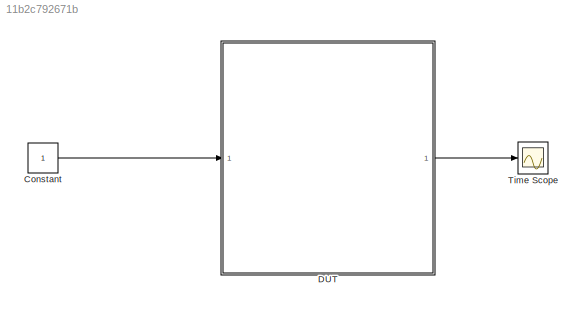
MODEL slx_11b2c792671b
KIND model
CONFIG AbsTol = auto
CONFIG EnableMultiTasking = off
CONFIG FixedStep = 1/128e6
CONFIG InitFcn = %axis_example_init\nnco_setup\nload('iq_bus_obj.mat')
CONFIG MaxStep = auto
CONFIG MinStep = auto
CONFIG RelTol = 1e-3
CONFIG SampleTimeConstraint = Unconstrained
CONFIG Solver = FixedStepDiscrete
CONFIG SolverName = FixedStepDiscrete
CONFIG StartTime = 0.0
CONFIG StopTime = 2e-6
BLOCK [Constant] Constant
  OutDataTypeStr = boolean
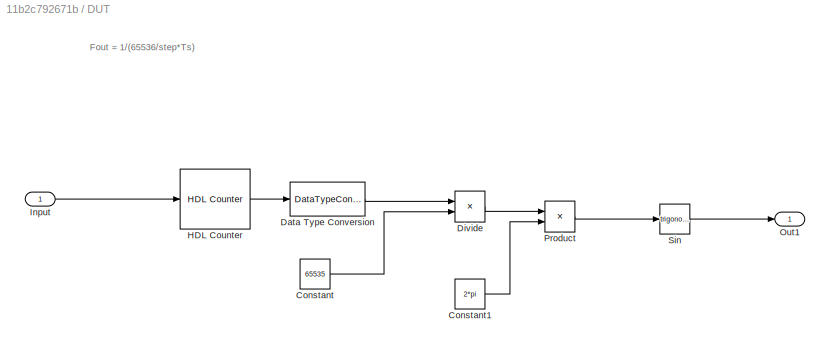
BLOCK [SubSystem] DUT
  Ports = [1, 1]
  RequestExecContextInheritance = off
BLOCK [Constant] DUT/Constant
  SampleTime = -1
  Value = 65535
BLOCK [Constant] DUT/Constant1
  SampleTime = -1
  Value = 2*pi
BLOCK [DataTypeConversion] DUT/Data Type Conversion
  RndMeth = Floor
  SaturateOnIntegerOverflow = off
BLOCK [Product] DUT/Divide
  InputSameDT = off
  Inputs = */
  OutDataTypeStr = Inherit: Inherit via internal rule
  Ports = [2, 1]
  RndMeth = Floor
  SaturateOnIntegerOverflow = off
BLOCK [Reference] DUT/HDL Counter  REF=hdlsllib/Sources/HDL Counter
  Ports = [1, 1]
  SourceBlock = hdlsllib/Sources/HDL Counter
  SourceProductBaseCode = SL
  SourceProductName = Simulink
  SourceType = HDL Counter
BLOCK [Inport] DUT/Input
  IconDisplay = Port number
BLOCK [Outport] DUT/Out1
  IconDisplay = Port number
BLOCK [Product] DUT/Product
  InputSameDT = off
  OutDataTypeStr = Inherit: Inherit via internal rule
  Ports = [2, 1]
  RndMeth = Floor
  SaturateOnIntegerOverflow = off
BLOCK [Trigonometry] DUT/Sin
  Ports = [1, 1]
BLOCK [Scope] Time Scope
  DefaultConfigurationName = spbscopes.TimeScopeBlockCfg
  Floating = off
  NumInputPorts = 1
  Ports = [1]
  ScopeSpecificationString = spbscopes.TimeScopeBlockCfg('CurrentConfiguration', extmgr.ConfigurationSet(extmgr.Configuration('Core','General UI',true,'FigureColor',[0.156862745098039 0.156862745098039 0.156862745098039]),extmgr.Configuration('Core','Source UI',true),extmgr.Configuration('Sources','WiredSimulink',true),extmgr.Configuration('Visuals','Time Domain',true,'DisplayPropertyDefaults',struct('MinYLimReal','-1.25','Ma...<+1764ch>
  UserDataPersistent = on
ANNOTATION DUT: Fout = 1/(65536/step*Ts)
LINE Constant:1 -> DUT:1
LINE DUT/Constant1:1 -> DUT/Product:2
LINE DUT/Constant:1 -> DUT/Divide:2
LINE DUT/Data Type Conversion:1 -> DUT/Divide:1
LINE DUT/Divide:1 -> DUT/Product:1
LINE DUT/HDL Counter:1 -> DUT/Data Type Conversion:1
LINE DUT/Input:1 -> DUT/HDL Counter:1
LINE DUT/Product:1 -> DUT/Sin:1
LINE DUT/Sin:1 -> DUT/Out1:1
LINE DUT:1 -> Time Scope:1
